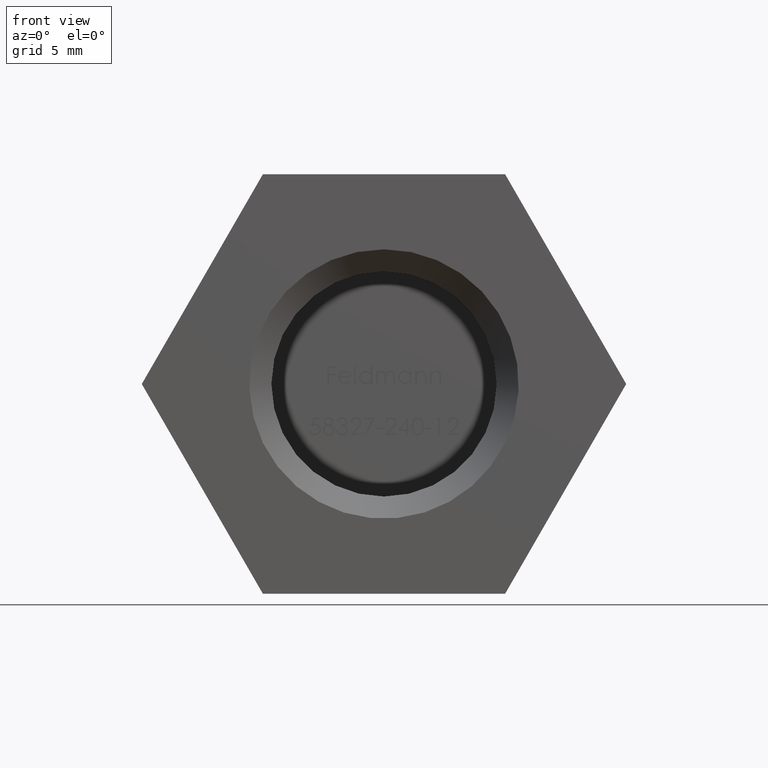
[diagram: clean part render]
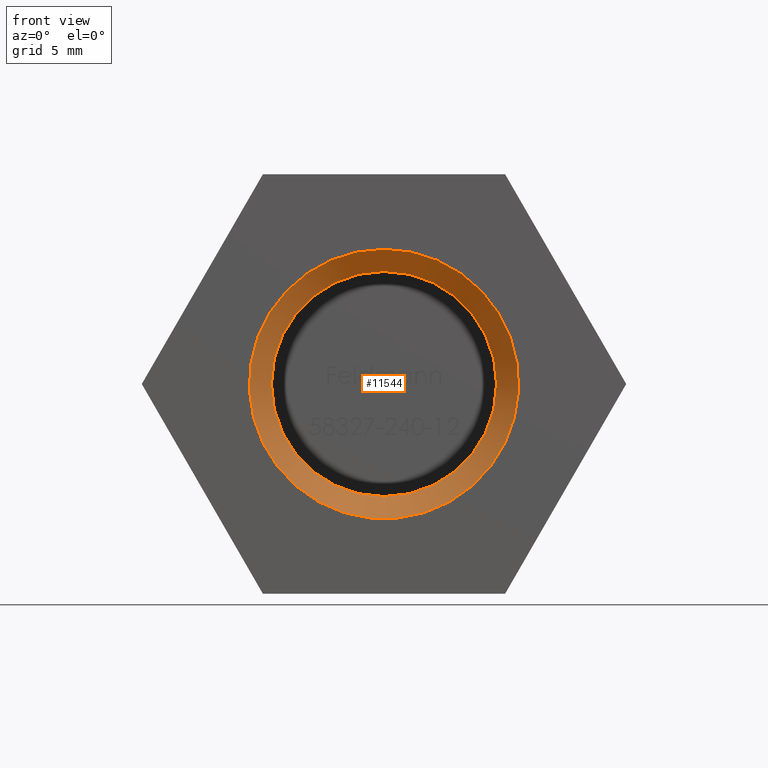
[diagram: same view with one face highlighted and labeled with its STEP entity id]
A machine part, front view. The second image highlights one B-rep face of the part: STEP entity #11544.
In plain terms, the highlighted conical surface has half-angle 45 deg.
Its self-contained STEP definition (entity closure, byte-faithful):
#112 = CIRCLE ( 'NONE', #10388, 5.099999999999996092 ) ;
#1345 = DIRECTION ( 'NONE',  ( 0.000000000000000000, -1.000000000000000000, 0.000000000000000000 ) ) ;
#2339 = DIRECTION ( 'NONE',  ( 0.000000000000000000, 0.000000000000000000, -1.000000000000000000 ) ) ;
#2501 = CARTESIAN_POINT ( 'NONE',  ( 0.000000000000000000, 1.000000000000001776, 0.000000000000000000 ) ) ;
#3090 = ORIENTED_EDGE ( 'NONE', *, *, #5870, .F. ) ;
#3942 = FACE_OUTER_BOUND ( 'NONE', #12636, .T. ) ;
#4171 = EDGE_LOOP ( 'NONE', ( #8999 ) ) ;
#4892 = EDGE_CURVE ( 'NONE', #10836, #10836, #112, .T. ) ;
#5870 = EDGE_CURVE ( 'NONE', #9286, #9286, #10007, .T. ) ;
#6385 = AXIS2_PLACEMENT_3D ( 'NONE', #10163, #13602, #2339 ) ;
#6596 = DIRECTION ( 'NONE',  ( 0.000000000000000000, 0.000000000000000000, 1.000000000000000000 ) ) ;
#6736 = CONICAL_SURFACE ( 'NONE', #6385, 5.099999999999996092, 0.7853981633974500554 ) ;
#7145 = AXIS2_PLACEMENT_3D ( 'NONE', #7699, #13161, #6596 ) ;
#7699 = CARTESIAN_POINT ( 'NONE',  ( 0.000000000000000000, 0.000000000000000000, 0.000000000000000000 ) ) ;
#7859 = CARTESIAN_POINT ( 'NONE',  ( 0.000000000000000000, 1.000000000000001776, 5.099999999999996092 ) ) ;
#7969 = CARTESIAN_POINT ( 'NONE',  ( 0.000000000000000000, 0.000000000000000000, 6.100000000000001421 ) ) ;
#8999 = ORIENTED_EDGE ( 'NONE', *, *, #4892, .F. ) ;
#9286 = VERTEX_POINT ( 'NONE', #7969 ) ;
#9333 = FACE_BOUND ( 'NONE', #4171, .T. ) ;
#10007 = CIRCLE ( 'NONE', #7145, 6.100000000000001421 ) ;
#10163 = CARTESIAN_POINT ( 'NONE',  ( 0.000000000000000000, 1.000000000000001776, 0.000000000000000000 ) ) ;
#10388 = AXIS2_PLACEMENT_3D ( 'NONE', #2501, #1345, #11425 ) ;
#10836 = VERTEX_POINT ( 'NONE', #7859 ) ;
#11425 = DIRECTION ( 'NONE',  ( 0.000000000000000000, 0.000000000000000000, 1.000000000000000000 ) ) ;
#11544 = ADVANCED_FACE ( 'NONE', ( #3942, #9333 ), #6736, .F. ) ;
#12636 = EDGE_LOOP ( 'NONE', ( #3090 ) ) ;
#13161 = DIRECTION ( 'NONE',  ( 0.000000000000000000, 1.000000000000000000, 0.000000000000000000 ) ) ;
#13602 = DIRECTION ( 'NONE',  ( 0.000000000000000000, -1.000000000000000000, 0.000000000000000000 ) ) ;